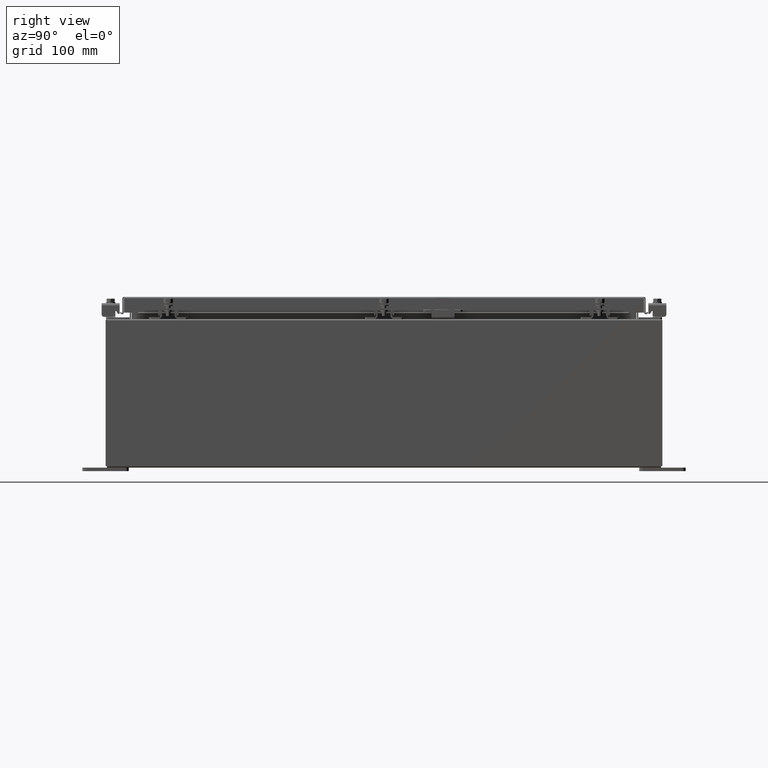
[diagram: clean part render]
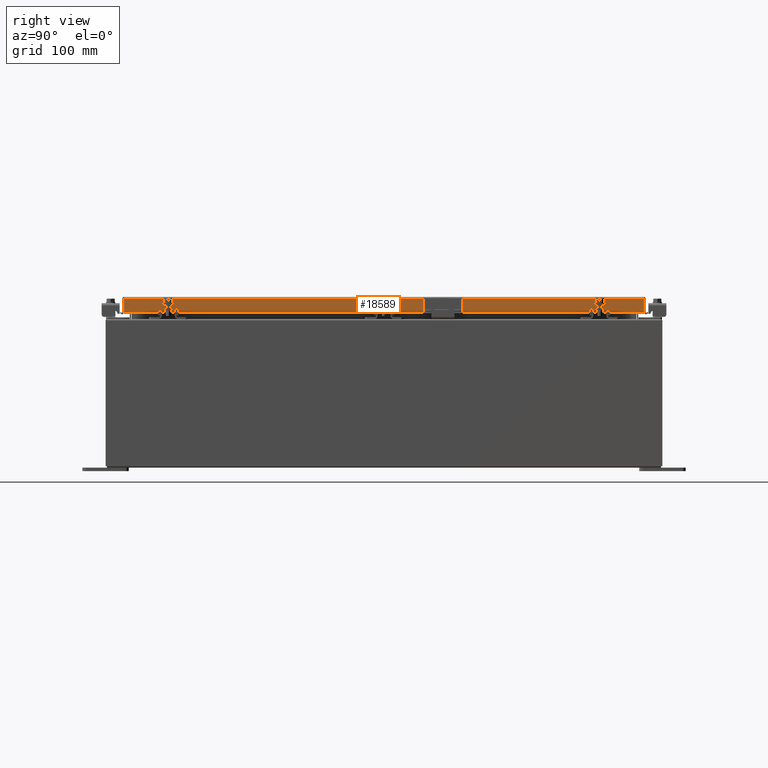
[diagram: same view with one face highlighted and labeled with its STEP entity id]
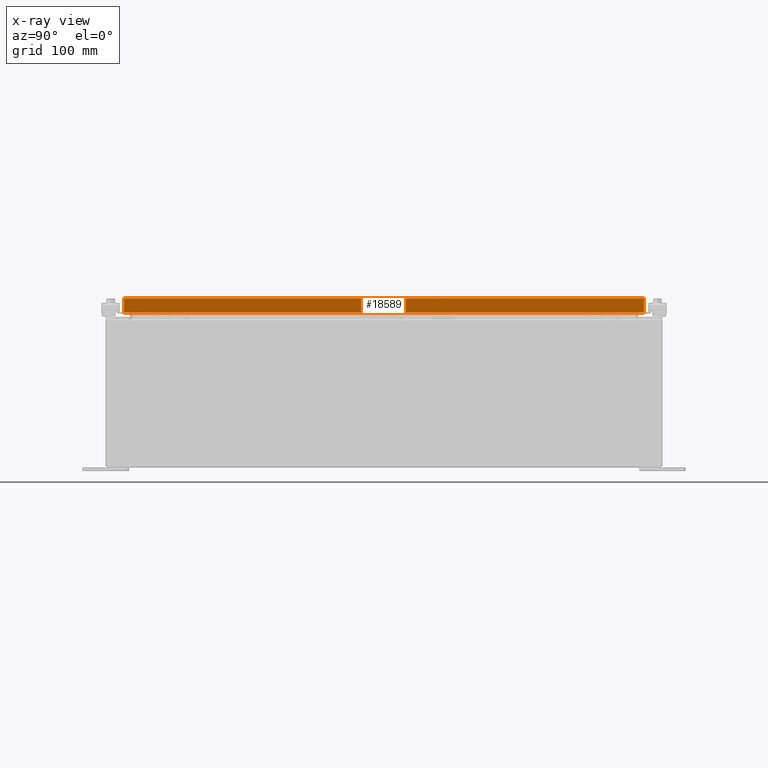
[diagram: x-ray of the same camera — body ghosted, the highlighted face saturated]
A machine part, right view. The second image highlights one B-rep face of the part: STEP entity #18589.
The next image is the same camera in x-ray: the body ghosted, the highlighted face saturated — about 0% of this face is hidden behind the body in this view.
In plain terms, the highlighted planar face has unit normal (1, 0, 0).
Its self-contained STEP definition (entity closure, byte-faithful):
#319 = ORIENTED_EDGE ( 'NONE', *, *, #6048, .F. ) ;
#651 = ORIENTED_EDGE ( 'NONE', *, *, #27986, .F. ) ;
#2185 = LINE ( 'NONE', #18944, #33307 ) ;
#3399 = VERTEX_POINT ( 'NONE', #30969 ) ;
#3655 = CARTESIAN_POINT ( 'NONE',  ( 9.078000000000003000, -14.09399999999999900, -0.8499999999999999800 ) ) ;
#3954 = VERTEX_POINT ( 'NONE', #28126 ) ;
#4383 = DIRECTION ( 'NONE',  ( 0.0000000000000000000, -1.000000000000000000, 0.0000000000000000000 ) ) ;
#4393 = LINE ( 'NONE', #3655, #33667 ) ;
#5723 = EDGE_CURVE ( 'NONE', #9964, #10383, #34615, .T. ) ;
#6048 = EDGE_CURVE ( 'NONE', #3399, #10344, #32278, .T. ) ;
#6609 = DIRECTION ( 'NONE',  ( 0.0000000000000000000, -1.000000000000000000, 0.0000000000000000000 ) ) ;
#6778 = CARTESIAN_POINT ( 'NONE',  ( 9.077999999999995900, 13.25515786437627100, -0.8500000000000010900 ) ) ;
#8731 = CARTESIAN_POINT ( 'NONE',  ( 9.078000000000001200, 0.0000000000000000000, 2.622574073917692700E-014 ) ) ;
#9020 = CARTESIAN_POINT ( 'NONE',  ( 9.078000000000001200, 14.00515786437626900, 1.234795293136246900E-013 ) ) ;
#9964 = VERTEX_POINT ( 'NONE', #32408 ) ;
#10344 = VERTEX_POINT ( 'NONE', #6778 ) ;
#10383 = VERTEX_POINT ( 'NONE', #18656 ) ;
#10678 = DIRECTION ( 'NONE',  ( 0.0000000000000000000, -1.000000000000000000, 0.0000000000000000000 ) ) ;
#11417 = DIRECTION ( 'NONE',  ( -2.818880942772360100E-015, -6.982962677686265900E-015, 1.000000000000000000 ) ) ;
#14388 = EDGE_LOOP ( 'NONE', ( #29063, #26763, #651, #319, #28943, #35706 ) ) ;
#14498 = PLANE ( 'NONE',  #15989 ) ;
#14615 = DIRECTION ( 'NONE',  ( 1.000000000000000000, 0.0000000000000000000, 2.818880942772360100E-015 ) ) ;
#15771 = LINE ( 'NONE', #9020, #30369 ) ;
#15989 = AXIS2_PLACEMENT_3D ( 'NONE', #8731, #14615, #35052 ) ;
#18203 = VECTOR ( 'NONE', #34283, 39.37007874015748100 ) ;
#18589 = ADVANCED_FACE ( 'NONE', ( #29632 ), #14498, .T. ) ;
#18656 = CARTESIAN_POINT ( 'NONE',  ( 9.078000000000001200, -14.00515786437626900, -0.08770000000000136000 ) ) ;
#18944 = CARTESIAN_POINT ( 'NONE',  ( 9.077999999999995900, 13.25515786437627200, -0.8500000000000010900 ) ) ;
#19345 = CARTESIAN_POINT ( 'NONE',  ( 9.078000000000003000, -14.09399999999999900, -0.8499999999999999800 ) ) ;
#24511 = VECTOR ( 'NONE', #10678, 39.37007874015748100 ) ;
#25973 = CARTESIAN_POINT ( 'NONE',  ( 9.078000000000001200, -14.00515786437626900, -0.07470000000000015500 ) ) ;
#25979 = LINE ( 'NONE', #31300, #18203 ) ;
#26763 = ORIENTED_EDGE ( 'NONE', *, *, #37799, .F. ) ;
#26793 = VECTOR ( 'NONE', #11417, 39.37007874015748100 ) ;
#27986 = EDGE_CURVE ( 'NONE', #10344, #28182, #2185, .T. ) ;
#28126 = CARTESIAN_POINT ( 'NONE',  ( 9.078000000000001200, 14.00515786437626500, -0.08770000000000026400 ) ) ;
#28182 = VERTEX_POINT ( 'NONE', #28371 ) ;
#28371 = CARTESIAN_POINT ( 'NONE',  ( 9.077999999999995900, -13.25515786437626400, -0.8500000000000010900 ) ) ;
#28943 = ORIENTED_EDGE ( 'NONE', *, *, #31108, .T. ) ;
#29063 = ORIENTED_EDGE ( 'NONE', *, *, #5723, .F. ) ;
#29632 = FACE_OUTER_BOUND ( 'NONE', #14388, .T. ) ;
#30369 = VECTOR ( 'NONE', #32383, 39.37007874015748100 ) ;
#30969 = CARTESIAN_POINT ( 'NONE',  ( 9.078000000000003000, 14.00515786437627200, -0.8499999999999999800 ) ) ;
#31108 = EDGE_CURVE ( 'NONE', #3399, #3954, #15771, .T. ) ;
#31300 = CARTESIAN_POINT ( 'NONE',  ( 9.078000000000001200, 3.399788135697810200E-018, -0.08770000000000026400 ) ) ;
#32278 = LINE ( 'NONE', #19345, #24511 ) ;
#32383 = DIRECTION ( 'NONE',  ( -2.818880942772360100E-015, -6.982962677686265900E-015, 1.000000000000000000 ) ) ;
#32408 = CARTESIAN_POINT ( 'NONE',  ( 9.078000000000003000, -14.00515786437626400, -0.8499999999999999800 ) ) ;
#33307 = VECTOR ( 'NONE', #4383, 39.37007874015748100 ) ;
#33667 = VECTOR ( 'NONE', #6609, 39.37007874015748100 ) ;
#34283 = DIRECTION ( 'NONE',  ( 1.092770575832425100E-031, -1.000000000000000000, -3.876611314976959400E-017 ) ) ;
#34615 = LINE ( 'NONE', #25973, #26793 ) ;
#35052 = DIRECTION ( 'NONE',  ( 2.818880942772360100E-015, 0.0000000000000000000, -1.000000000000000000 ) ) ;
#35706 = ORIENTED_EDGE ( 'NONE', *, *, #36465, .T. ) ;
#36465 = EDGE_CURVE ( 'NONE', #3954, #10383, #25979, .T. ) ;
#37799 = EDGE_CURVE ( 'NONE', #28182, #9964, #4393, .T. ) ;